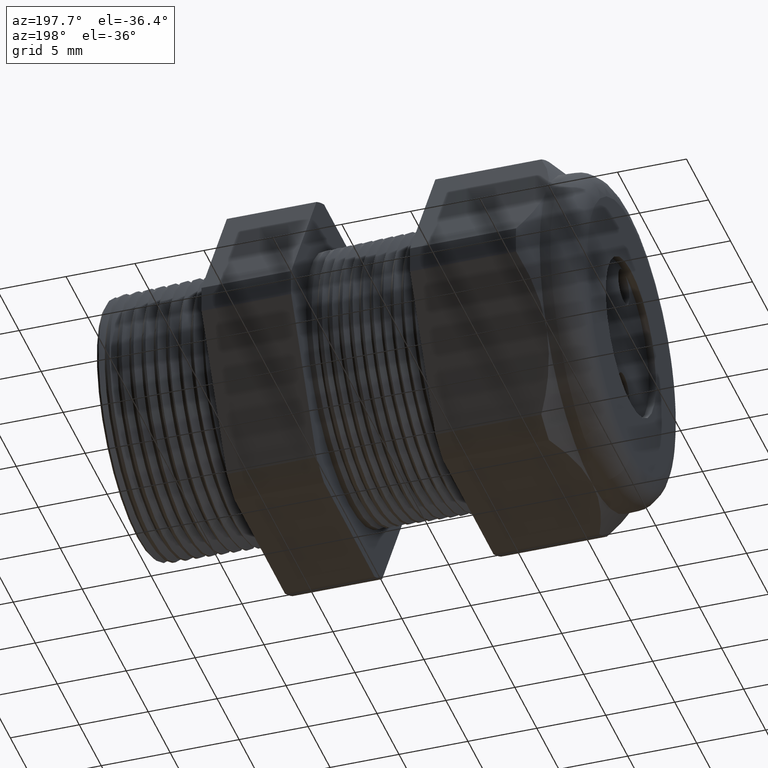
[diagram: clean part render]
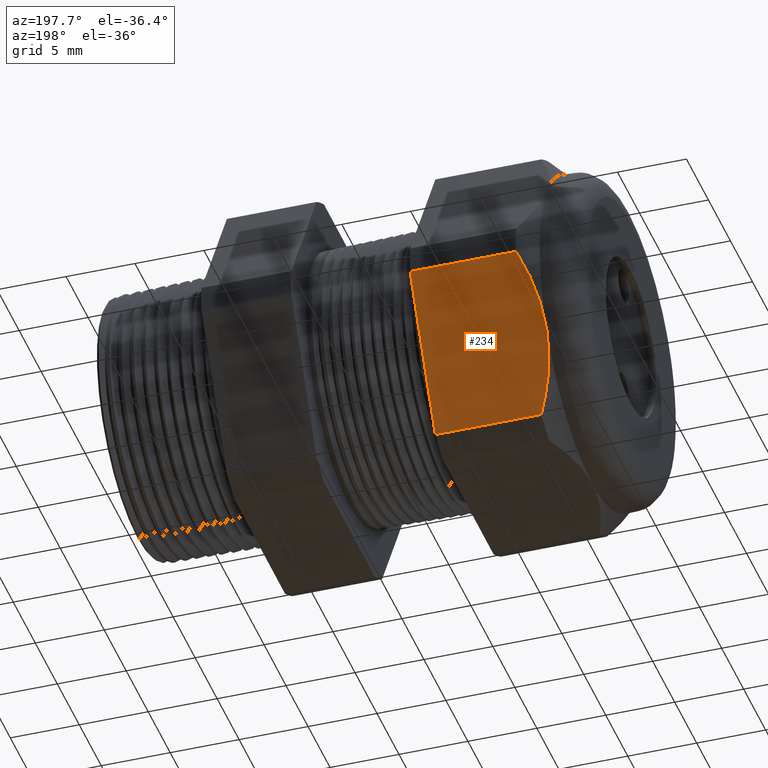
[diagram: same view with one face highlighted and labeled with its STEP entity id]
A machine part, auxiliary view. The second image highlights one B-rep face of the part: STEP entity #234.
In plain terms, the highlighted planar face has unit normal (0, 0.866, -0.5).
Its self-contained STEP definition (entity closure, byte-faithful):
#43 = EDGE_CURVE ( 'NONE', #231, #44, #1188, .T. ) ;
#44 = VERTEX_POINT ( 'NONE', #1184 ) ;
#45 = EDGE_CURVE ( 'NONE', #44, #224, #1183, .T. ) ;
#47 = ORIENTED_EDGE ( 'NONE', *, *, #43, .F. ) ;
#48 = ORIENTED_EDGE ( 'NONE', *, *, #45, .F. ) ;
#224 = VERTEX_POINT ( 'NONE', #1580 ) ;
#225 = EDGE_CURVE ( 'NONE', #232, #472, #1576, .T. ) ;
#226 = EDGE_CURVE ( 'NONE', #472, #224, #1575, .T. ) ;
#227 = ORIENTED_EDGE ( 'NONE', *, *, #226, .T. ) ;
#228 = ORIENTED_EDGE ( 'NONE', *, *, #225, .T. ) ;
#229 = ORIENTED_EDGE ( 'NONE', *, *, #230, .T. ) ;
#230 = EDGE_CURVE ( 'NONE', #231, #232, #1574, .T. ) ;
#231 = VERTEX_POINT ( 'NONE', #1554 ) ;
#232 = VERTEX_POINT ( 'NONE', #1553 ) ;
#233 = EDGE_LOOP ( 'NONE', ( #229, #228, #227, #48, #47 ) ) ;
#234 = ADVANCED_FACE ( 'NONE', ( #1612 ), #1611, .T. ) ;
#472 = VERTEX_POINT ( 'NONE', #1998 ) ;
#1180 = DIRECTION ( 'NONE',  ( -1.000000000000000000, 0.0000000000000000000, 0.0000000000000000000 ) ) ;
#1181 = VECTOR ( 'NONE', #1180, 39.37007874015748100 ) ;
#1182 = CARTESIAN_POINT ( 'NONE',  ( 0.03999999999999984800, 0.5202473208008777700, -0.03890520787129496400 ) ) ;
#1183 = LINE ( 'NONE', #1182, #1181 ) ;
#1184 = CARTESIAN_POINT ( 'NONE',  ( -0.9054330708661418900, 0.5202473208008777700, -0.03890520787129496400 ) ) ;
#1185 = DIRECTION ( 'NONE',  ( 0.0000000000000000000, 0.4999999999999998300, 0.8660254037844388200 ) ) ;
#1186 = VECTOR ( 'NONE', #1185, 39.37007874015748100 ) ;
#1187 = CARTESIAN_POINT ( 'NONE',  ( -0.9054330708661418900, 0.5057819397786862400, -0.06395998275257334900 ) ) ;
#1188 = LINE ( 'NONE', #1187, #1186 ) ;
#1553 = CARTESIAN_POINT ( 'NONE',  ( -1.208063779527559100, 0.2938165587564948700, -0.4310947921287048800 ) ) ;
#1554 = CARTESIAN_POINT ( 'NONE',  ( -0.9054330708661418900, 0.2938165587564948700, -0.4310947921287048800 ) ) ;
#1555 = DIRECTION ( 'NONE',  ( -1.000000000000000000, 0.0000000000000000000, 0.0000000000000000000 ) ) ;
#1556 = VECTOR ( 'NONE', #1555, 39.37007874015748100 ) ;
#1557 = CARTESIAN_POINT ( 'NONE',  ( 0.03999999999999984800, 0.2938165587564948700, -0.4310947921287048800 ) ) ;
#1558 = CARTESIAN_POINT ( 'NONE',  ( -1.208063779527559100, 0.5202473208008777700, -0.03890520787129498500 ) ) ;
#1559 = CARTESIAN_POINT ( 'NONE',  ( -1.223717189021966700, 0.5022144712456754200, -0.07013901950615120100 ) ) ;
#1560 = CARTESIAN_POINT ( 'NONE',  ( -1.236822062588142300, 0.4835762490957482000, -0.1024213672325804400 ) ) ;
#1561 = CARTESIAN_POINT ( 'NONE',  ( -1.254818111347315600, 0.4458197490082085300, -0.1678175437001785400 ) ) ;
#1562 = CARTESIAN_POINT ( 'NONE',  ( -1.259763779527559100, 0.4266212606411439200, -0.2010703009804542000 ) ) ;
#1563 = CARTESIAN_POINT ( 'NONE',  ( -1.259763779527559400, 0.4070319397786864000, -0.2349999999999999900 ) ) ;
#1564 = CARTESIAN_POINT ( 'NONE',  ( -1.259763779527559400, 0.4070319397786864000, -0.2349999999999999900 ) ) ;
#1565 = CARTESIAN_POINT ( 'NONE',  ( -1.259763779527559100, 0.4021312490570418400, -0.2434882453220695900 ) ) ;
#1566 = CARTESIAN_POINT ( 'NONE',  ( -1.259453644849874100, 0.3971857355050538700, -0.2520541260636332000 ) ) ;
#1567 = CARTESIAN_POINT ( 'NONE',  ( -1.258221849142435500, 0.3873598765596237800, -0.2690730129851234800 ) ) ;
#1568 = CARTESIAN_POINT ( 'NONE',  ( -1.257304216752656200, 0.3824845463488701400, -0.2775173326138242200 ) ) ;
#1569 = CARTESIAN_POINT ( 'NONE',  ( -1.253700751481475300, 0.3679645453500629500, -0.3026667120697089100 ) ) ;
#1570 = CARTESIAN_POINT ( 'NONE',  ( -1.250164085422761600, 0.3584258972266241600, -0.3191881352550267100 ) ) ;
#1571 = CARTESIAN_POINT ( 'NONE',  ( -1.236620445010038900, 0.3301755151959553400, -0.3681192322653758500 ) ) ;
#1572 = CARTESIAN_POINT ( 'NONE',  ( -1.223697825203295700, 0.3118271010418954300, -0.3998996178185232900 ) ) ;
#1573 = CARTESIAN_POINT ( 'NONE',  ( -1.208063779527559100, 0.2938165587564948700, -0.4310947921287048800 ) ) ;
#1574 = LINE ( 'NONE', #1557, #1556 ) ;
#1575 = B_SPLINE_CURVE_WITH_KNOTS ( 'NONE', 3,
 ( #1563, #1562, #1561, #1560, #1559, #1558 ),
 .UNSPECIFIED., .F., .F.,
 ( 4, 2, 4 ),
 ( 0.005903107334592310800, 0.008852512982428771900, 0.01180191863026523600 ),
 .UNSPECIFIED. ) ;
#1576 = B_SPLINE_CURVE_WITH_KNOTS ( 'NONE', 3,
 ( #1573, #1572, #1571, #1570, #1569, #1568, #1567, #1566, #1565, #1564 ),
 .UNSPECIFIED., .F., .F.,
 ( 4, 2, 2, 2, 4 ),
 ( 2.483251536686118000E-007, 0.002951677829872991300, 0.004427392582232649700, 0.005165249958412479800, 0.005903107334592310800 ),
 .UNSPECIFIED. ) ;
#1580 = CARTESIAN_POINT ( 'NONE',  ( -1.208063779527559100, 0.5202473208008777700, -0.03890520787129498500 ) ) ;
#1607 = DIRECTION ( 'NONE',  ( 0.0000000000000000000, 0.4999999999999998300, 0.8660254037844388200 ) ) ;
#1608 = DIRECTION ( 'NONE',  ( 0.0000000000000000000, 0.8660254037844388200, -0.4999999999999998300 ) ) ;
#1609 = CARTESIAN_POINT ( 'NONE',  ( 0.03999999999999984800, 0.5202473208008777700, -0.03890520787129496400 ) ) ;
#1610 = AXIS2_PLACEMENT_3D ( 'NONE', #1609, #1608, #1607 ) ;
#1611 = PLANE ( 'NONE',  #1610 ) ;
#1612 = FACE_OUTER_BOUND ( 'NONE', #233, .T. ) ;
#1998 = CARTESIAN_POINT ( 'NONE',  ( -1.259763779527559400, 0.4070319397786864000, -0.2349999999999999900 ) ) ;